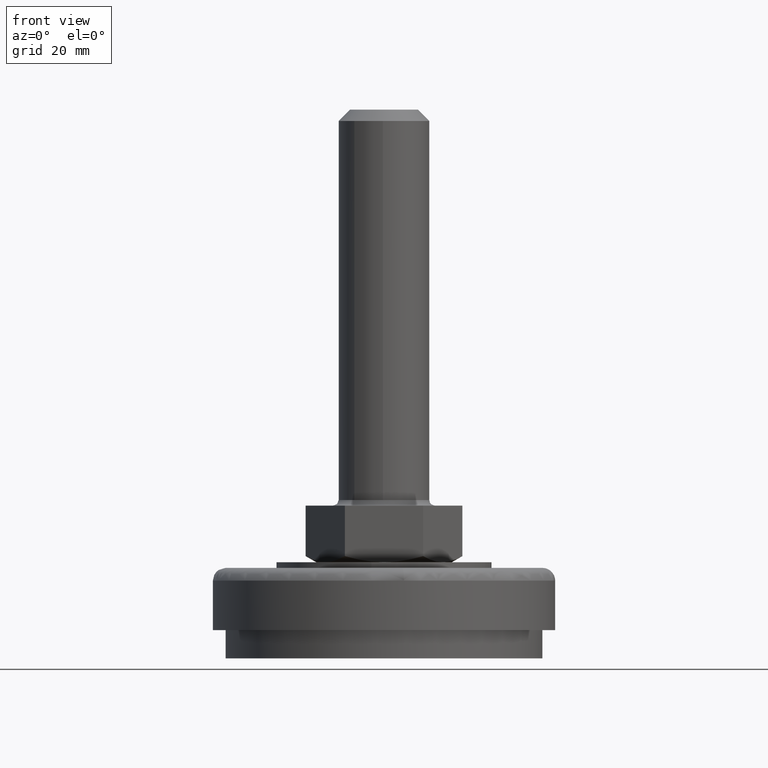
[diagram: clean part render]
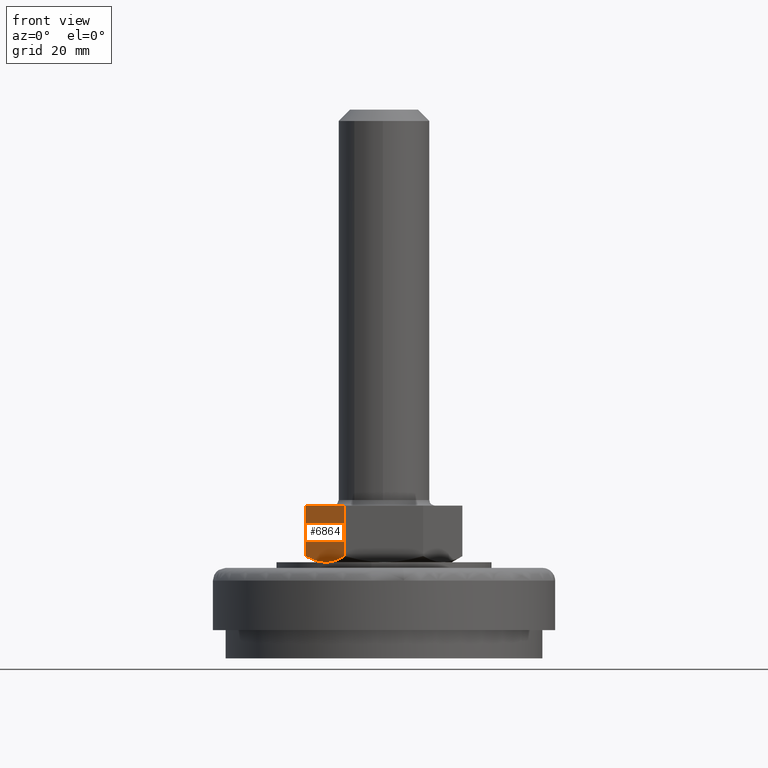
[diagram: same view with one face highlighted and labeled with its STEP entity id]
A machine part, front view. The second image highlights one B-rep face of the part: STEP entity #6864.
In plain terms, the highlighted face is a freeform B-spline surface patch.
Its self-contained STEP definition (entity closure, byte-faithful):
#5170=CARTESIAN_POINT('',(-10.439837254229660,-5.906575727528188,17.000759792401880));
#5171=VERTEX_POINT('',#5170);
#5177=CARTESIAN_POINT('',(-13.850000000000000,0.0,18.071796703249699));
#5178=VERTEX_POINT('',#5177);
#5179=CARTESIAN_POINT('',(-13.850000000000000,0.0,18.071796703249699));
#5180=CARTESIAN_POINT('',(-13.284368375614870,-0.979702744365645,17.745229132648490));
#5181=CARTESIAN_POINT('',(-12.714610914459580,-1.966551647878359,17.476105887228069));
#5182=CARTESIAN_POINT('',(-11.851057302962399,-3.462270427764870,17.196578902516471));
#5183=CARTESIAN_POINT('',(-11.561716297653041,-3.963423766330758,17.124145855175641));
#5184=CARTESIAN_POINT('',(-10.995284574463851,-4.944512322522069,17.028852786995461));
#5185=CARTESIAN_POINT('',(-10.718367378472280,-5.424146991410781,17.003576808295531));
#5186=CARTESIAN_POINT('',(-10.439837254229660,-5.906575727528188,17.000759792401880));
#5187=B_SPLINE_CURVE_WITH_KNOTS('',3,(#5179,#5180,#5181,#5182,#5183,#5184,#5185,#5186),.UNSPECIFIED.,.F.,.U.,(4,2,2,4),(0.0,0.250000000000000,0.375000000000000,0.493290130087123),.UNSPECIFIED.);
#5188=EDGE_CURVE('',#5178,#5171,#5187,.T.);
#5288=CARTESIAN_POINT('',(-6.921797000000001,-12.0,18.073646796981201));
#5289=VERTEX_POINT('',#5288);
#5312=CARTESIAN_POINT('',(-10.439837254229660,-5.906575727528188,17.000759792401880));
#5313=CARTESIAN_POINT('',(-10.424037776088790,-5.933940833854740,17.000600360546269));
#5314=CARTESIAN_POINT('',(-10.408233279041770,-5.961315026638092,17.000512852838849));
#5315=CARTESIAN_POINT('',(-10.245161909326720,-6.243762933632256,17.000358269839030));
#5316=CARTESIAN_POINT('',(-10.097155733148311,-6.500117159127804,17.006529891489759));
#5317=CARTESIAN_POINT('',(-9.802498824526444,-7.010477912625112,17.031294519301142));
#5318=CARTESIAN_POINT('',(-9.655682797952521,-7.264770738468562,17.049859409899430));
#5319=CARTESIAN_POINT('',(-9.216705319829474,-8.025102059227567,17.123297280416342));
#5320=CARTESIAN_POINT('',(-8.926017900959536,-8.528587454565894,17.195954855953609));
#5321=CARTESIAN_POINT('',(-8.059134931252542,-10.030072852220069,17.476417054108659));
#5322=CARTESIAN_POINT('',(-7.488098331186373,-11.019137289389990,17.746465787438879));
#5323=CARTESIAN_POINT('',(-6.921797000000001,-12.0,18.073646796981201));
#5324=B_SPLINE_CURVE_WITH_KNOTS('',3,(#5312,#5313,#5314,#5315,#5316,#5317,#5318,#5319,#5320,#5321,#5322,#5323),.UNSPECIFIED.,.F.,.U.,(4,2,2,2,2,4),(0.493290130087123,0.500000000000000,0.562500000000000,0.625000000000000,0.750000000000000,1.0),.UNSPECIFIED.);
#5325=EDGE_CURVE('',#5171,#5289,#5324,.T.);
#6774=CARTESIAN_POINT('',(-13.850000000000000,0.0,27.0));
#6775=VERTEX_POINT('',#6774);
#6781=CARTESIAN_POINT('',(-6.921797000000001,-12.0,27.0));
#6782=VERTEX_POINT('',#6781);
#6783=CARTESIAN_POINT('',(-6.921797000000001,-12.0,27.0));
#6784=CARTESIAN_POINT('',(-13.850000000000000,0.0,27.0));
#6785=QUASI_UNIFORM_CURVE('',1,(#6783,#6784),.UNSPECIFIED.,.F.,.U.);
#6786=EDGE_CURVE('',#6782,#6775,#6785,.T.);
#6839=CARTESIAN_POINT('',(-13.850000000000000,0.0,27.0));
#6840=CARTESIAN_POINT('',(-13.850000000000000,0.0,18.071796703249699));
#6841=QUASI_UNIFORM_CURVE('',1,(#6839,#6840),.UNSPECIFIED.,.F.,.U.);
#6842=EDGE_CURVE('',#6775,#5178,#6841,.T.);
#6848=CARTESIAN_POINT('',(-14.196063856495879,0.599400202036468,16.501297059350289));
#6849=CARTESIAN_POINT('',(-6.575733081561211,-12.599400309324860,16.501297059350289));
#6850=CARTESIAN_POINT('',(-14.196063856495879,0.599400202036468,27.499462330691031));
#6851=CARTESIAN_POINT('',(-6.575733081561211,-12.599400309324860,27.499462330691031));
#6852=B_SPLINE_SURFACE_WITH_KNOTS('',1,1,((#6848,#6850),(#6849,#6851)),.UNSPECIFIED.,.F.,.F.,.U.,(2,2),(2,2),(0.0,15.240661929789290),(0.0,10.998165271340740),.UNSPECIFIED.);
#6853=ORIENTED_EDGE('',*,*,#6842,.T.);
#6854=ORIENTED_EDGE('',*,*,#5188,.T.);
#6855=ORIENTED_EDGE('',*,*,#5325,.T.);
#6856=CARTESIAN_POINT('',(-6.921797000000001,-12.0,27.0));
#6857=CARTESIAN_POINT('',(-6.921797000000001,-12.0,18.073646796981201));
#6858=QUASI_UNIFORM_CURVE('',1,(#6856,#6857),.UNSPECIFIED.,.F.,.U.);
#6859=EDGE_CURVE('',#6782,#5289,#6858,.T.);
#6860=ORIENTED_EDGE('',*,*,#6859,.F.);
#6861=ORIENTED_EDGE('',*,*,#6786,.T.);
#6862=EDGE_LOOP('',(#6853,#6854,#6855,#6860,#6861));
#6863=FACE_OUTER_BOUND('',#6862,.T.);
#6864=ADVANCED_FACE('',(#6863),#6852,.T.);